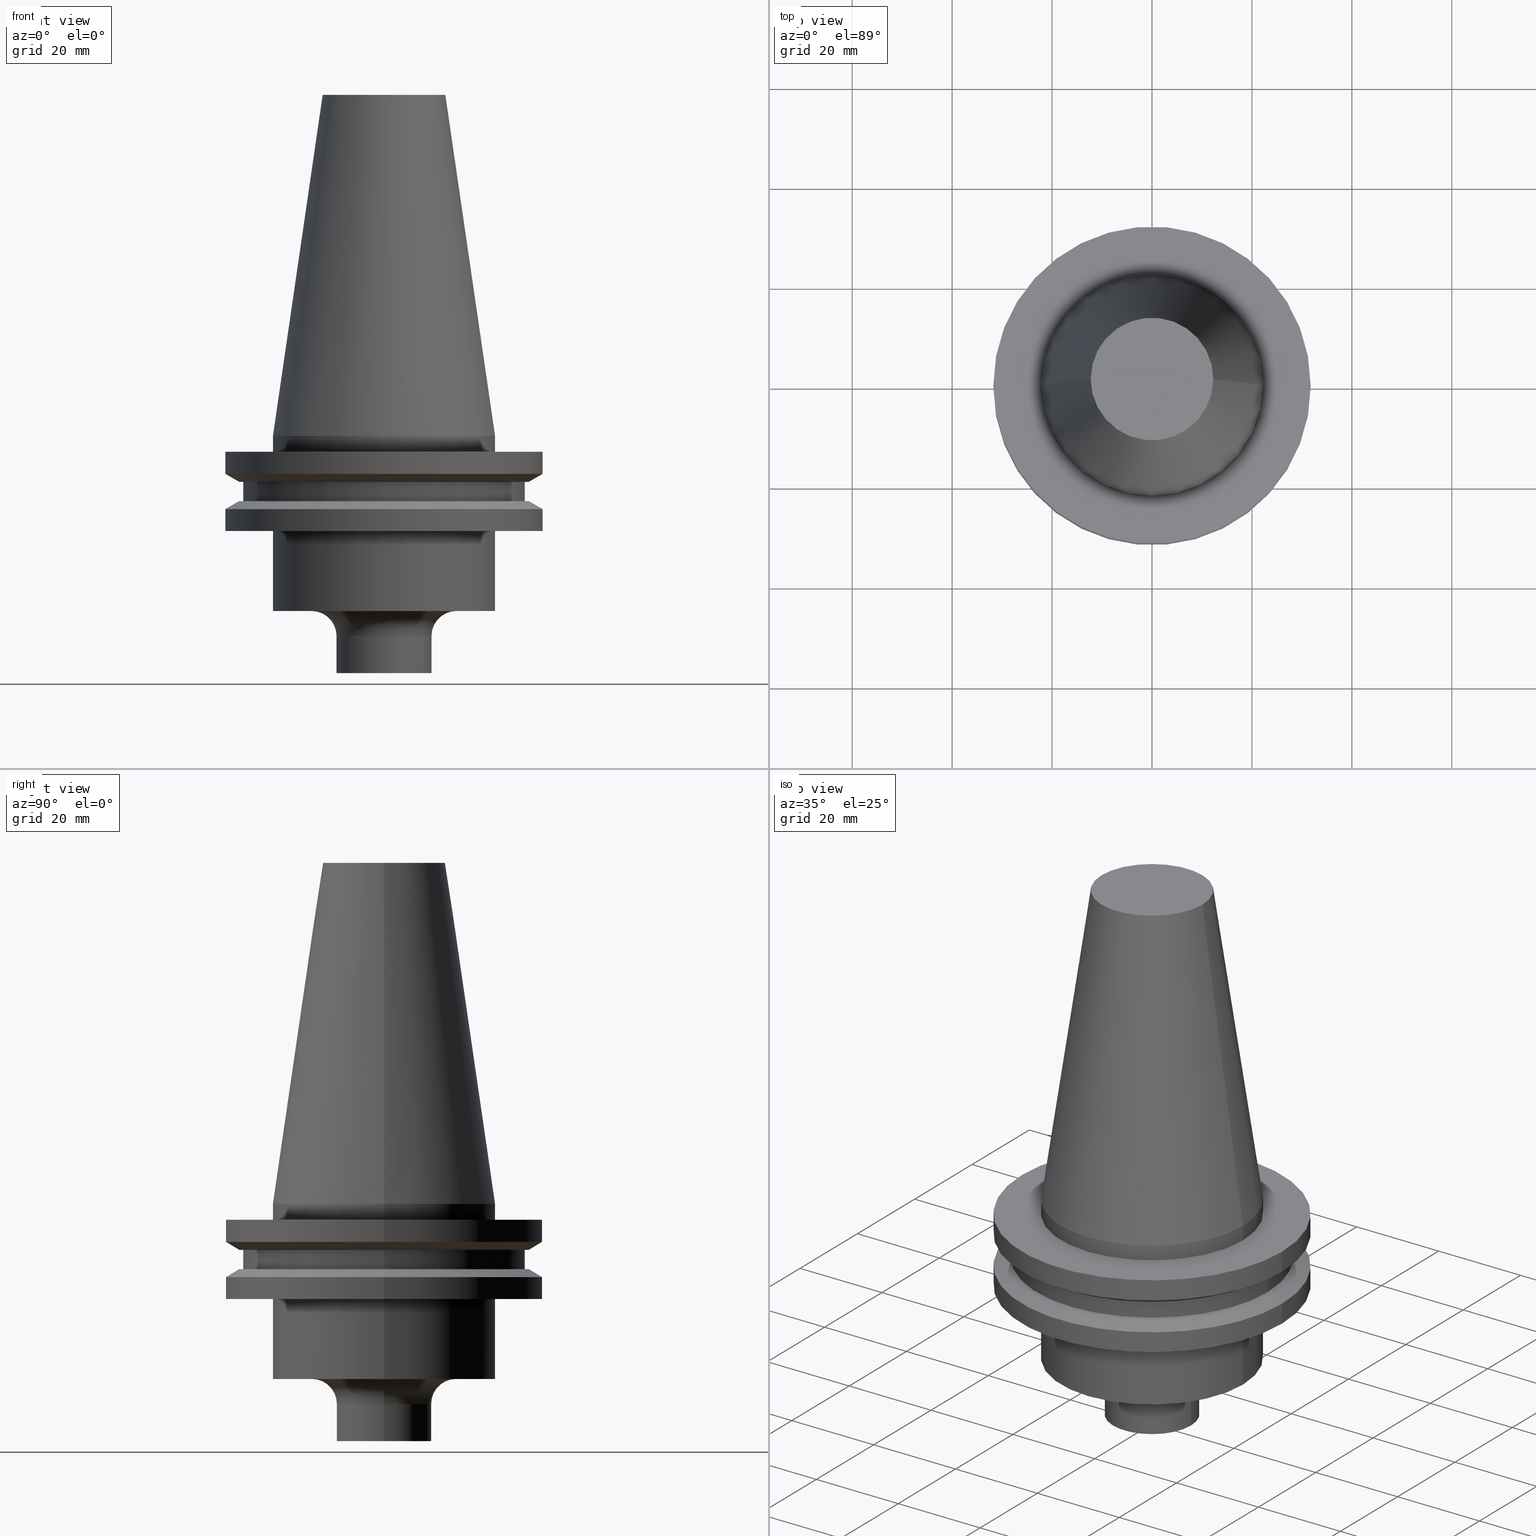
[diagram: canonical four-view strip — front | top / right | iso, engineering-drawing reading convention]
A machine part, canonical four-view strip (front | top / right | iso — engineering-drawing reading convention). The complete STEP part file that produces these views, byte-faithful:
ISO-10303-21;
HEADER;
FILE_DESCRIPTION (( 'STEP AP203' ),
    '1' );
FILE_NAME ('11_326_410.stp',
    '2022-03-07T22:02:13',
    ( '' ),
    ( '' ),
    'SwSTEP 2.0',
    'SolidWorks 2021',
    '' );
FILE_SCHEMA (( 'CONFIG_CONTROL_DESIGN' ));
ENDSEC;

DATA;
#1 = VERTEX_POINT ( 'NONE', #56 ) ;
#2 = APPROVAL_ROLE ( '' ) ;
#3 = ADVANCED_FACE ( 'NONE', ( #408 ), #601, .T. ) ;
#4 = LINE ( 'NONE', #603, #214 ) ;
#5 = ORIENTED_EDGE ( 'NONE', *, *, #110, .T. ) ;
#6 = AXIS2_PLACEMENT_3D ( 'NONE', #674, #201, #374 ) ;
#7 = CARTESIAN_POINT ( 'NONE',  ( 31.75000000000000000, 0.000000000000000000, -7.605276606597335842 ) ) ;
#8 = CALENDAR_DATE ( 2022, 7, 3 ) ;
#9 = ORIENTED_EDGE ( 'NONE', *, *, #564, .F. ) ;
#10 = EDGE_CURVE ( 'NONE', #628, #239, #735, .T. ) ;
#11 = CC_DESIGN_APPROVAL ( #255, ( #557 ) ) ;
#12 = PERSON_AND_ORGANIZATION ( #497, #494 ) ;
#13 = ORIENTED_EDGE ( 'NONE', *, *, #118, .T. ) ;
#14 = DIRECTION ( 'NONE',  ( 0.000000000000000000, 0.000000000000000000, -1.000000000000000000 ) ) ;
#15 = DATE_TIME_ROLE ( 'creation_date' ) ;
#16 = VECTOR ( 'NONE', #274, 999.9999999999998863 ) ;
#17 = CARTESIAN_POINT ( 'NONE',  ( -31.75000000000000000, 3.888253587292846476E-15, -7.605276606597335842 ) ) ;
#18 = EDGE_CURVE ( 'NONE', #587, #103, #124, .T. ) ;
#19 = DIRECTION ( 'NONE',  ( 1.000000000000000000, 0.000000000000000000, 0.000000000000000000 ) ) ;
#20 = AXIS2_PLACEMENT_3D ( 'NONE', #275, #287, #775 ) ;
#21 = CARTESIAN_POINT ( 'NONE',  ( -22.22500000000000142, 2.721777511104992849E-15, -35.04999999999999716 ) ) ;
#22 = CYLINDRICAL_SURFACE ( 'NONE', #695, 22.22500000000000142 ) ;
#23 = DIRECTION ( 'NONE',  ( -0.000000000000000000, -0.000000000000000000, 1.000000000000000000 ) ) ;
#24 = VECTOR ( 'NONE', #142, 1000.000000000000000 ) ;
#25 = CARTESIAN_POINT ( 'NONE',  ( 28.97919780457007732, 0.000000000000000000, -9.205000000000005400 ) ) ;
#26 = AXIS2_PLACEMENT_3D ( 'NONE', #444, #563, #27 ) ;
#27 = DIRECTION ( 'NONE',  ( 1.000000000000000000, 0.000000000000000000, 0.000000000000000000 ) ) ;
#28 = CARTESIAN_POINT ( 'NONE',  ( 0.000000000000000000, 0.000000000000000000, -3.174999999999997158 ) ) ;
#29 = CARTESIAN_POINT ( 'NONE',  ( 0.000000000000000000, 0.000000000000000000, 68.25000000000000000 ) ) ;
#30 = EDGE_CURVE ( 'NONE', #103, #587, #297, .T. ) ;
#31 = ORIENTED_EDGE ( 'NONE', *, *, #192, .F. ) ;
#32 = ORIENTED_EDGE ( 'NONE', *, *, #525, .T. ) ;
#33 = DIRECTION ( 'NONE',  ( 1.000000000000000000, 0.000000000000000000, 0.000000000000000000 ) ) ;
#34 = LINE ( 'NONE', #572, #765 ) ;
#35 = FACE_OUTER_BOUND ( 'NONE', #150, .T. ) ;
#36 = DIRECTION ( 'NONE',  ( 1.000000000000000000, 0.000000000000000000, 0.000000000000000000 ) ) ;
#37 = VECTOR ( 'NONE', #505, 1000.000000000000000 ) ;
#38 = EDGE_LOOP ( 'NONE', ( #770, #529, #149, #221 ) ) ;
#39 = CC_DESIGN_PERSON_AND_ORGANIZATION_ASSIGNMENT ( #12, #300, ( #557 ) ) ;
#40 = EDGE_LOOP ( 'NONE', ( #410, #323, #509, #571 ) ) ;
#41 = DIRECTION ( 'NONE',  ( -1.000000000000000000, 0.000000000000000000, 0.000000000000000000 ) ) ;
#42 = DIRECTION ( 'NONE',  ( -0.000000000000000000, -0.000000000000000000, 1.000000000000000000 ) ) ;
#43 = CARTESIAN_POINT ( 'NONE',  ( 0.000000000000000000, 0.000000000000000000, -40.04999999999999716 ) ) ;
#44 = DIRECTION ( 'NONE',  ( -0.000000000000000000, -0.000000000000000000, 1.000000000000000000 ) ) ;
#45 = ORIENTED_EDGE ( 'NONE', *, *, #568, .F. ) ;
#46 = ORIENTED_EDGE ( 'NONE', *, *, #731, .T. ) ;
#47 = PLANE ( 'NONE',  #492 ) ;
#48 = DIRECTION ( 'NONE',  ( 1.000000000000000000, 0.000000000000000000, 0.000000000000000000 ) ) ;
#49 = CARTESIAN_POINT ( 'NONE',  ( 0.000000000000000000, 0.000000000000000000, -7.605276606597335842 ) ) ;
#50 = VERTEX_POINT ( 'NONE', #692 ) ;
#51 = CIRCLE ( 'NONE', #653, 28.97919780457008088 ) ;
#52 = VECTOR ( 'NONE', #445, 999.9999999999998863 ) ;
#53 = EDGE_LOOP ( 'NONE', ( #95, #484 ) ) ;
#54 = EDGE_CURVE ( 'NONE', #164, #257, #654, .T. ) ;
#55 = DIRECTION ( 'NONE',  ( 1.000000000000000000, 0.000000000000000000, 0.000000000000000000 ) ) ;
#56 = CARTESIAN_POINT ( 'NONE',  ( -28.97919780457008088, 0.000000000000000000, -13.05499999999999794 ) ) ;
#57 = CONICAL_SURFACE ( 'NONE', #489, 22.22500000000000142, 0.1448138465474119174 ) ;
#58 = DIRECTION ( 'NONE',  ( -0.000000000000000000, -0.000000000000000000, 1.000000000000000000 ) ) ;
#59 = VERTEX_POINT ( 'NONE', #586 ) ;
#60 = PERSON_AND_ORGANIZATION ( #497, #494 ) ;
#61 = EDGE_CURVE ( 'NONE', #211, #605, #376, .T. ) ;
#62 = CIRCLE ( 'NONE', #763, 14.49999999999999822 ) ;
#63 = AXIS2_PLACEMENT_3D ( 'NONE', #585, #335, #753 ) ;
#64 = EDGE_LOOP ( 'NONE', ( #512, #381 ) ) ;
#65 = APPROVAL_DATE_TIME ( #600, #368 ) ;
#66 = CARTESIAN_POINT ( 'NONE',  ( -28.17999999999999972, 3.451054679997241634E-15, -9.204999999999991189 ) ) ;
#67 = CIRCLE ( 'NONE', #102, 31.74999999999999289 ) ;
#68 = APPROVAL_STATUS ( 'not_yet_approved' ) ;
#69 = CARTESIAN_POINT ( 'NONE',  ( 31.74999999999999289, 0.000000000000000000, -19.04999999999999716 ) ) ;
#70 = DATE_AND_TIME ( #8, #72 ) ;
#71 = EDGE_LOOP ( 'NONE', ( #667, #282 ) ) ;
#72 = LOCAL_TIME ( 16, 2, 13.00000000000000000, #307 ) ;
#73 = CYLINDRICAL_SURFACE ( 'NONE', #386, 31.75000000000000000 ) ;
#74 = DIRECTION ( 'NONE',  ( 0.000000000000000000, 0.000000000000000000, 1.000000000000000000 ) ) ;
#75 = AXIS2_PLACEMENT_3D ( 'NONE', #613, #311, #19 ) ;
#76 = EDGE_CURVE ( 'NONE', #448, #1, #559, .T. ) ;
#77 = VERTEX_POINT ( 'NONE', #171 ) ;
#78 = AXIS2_PLACEMENT_3D ( 'NONE', #155, #392, #637 ) ;
#79 = DIRECTION ( 'NONE',  ( 0.8660254037844389297, 0.000000000000000000, 0.4999999999999995004 ) ) ;
#80 = EDGE_CURVE ( 'NONE', #574, #581, #116, .T. ) ;
#81 = CIRCLE ( 'NONE', #417, 12.27178102086201150 ) ;
#82 = CARTESIAN_POINT ( 'NONE',  ( 0.000000000000000000, 0.000000000000000000, 0.000000000000000000 ) ) ;
#83 = DIRECTION ( 'NONE',  ( 1.000000000000000000, 0.000000000000000000, 0.000000000000000000 ) ) ;
#84 = CARTESIAN_POINT ( 'NONE',  ( 0.000000000000000000, 0.000000000000000000, -40.04999999999999716 ) ) ;
#85 = DIRECTION ( 'NONE',  ( 1.000000000000000000, 0.000000000000000000, 0.000000000000000000 ) ) ;
#86 = DIRECTION ( 'NONE',  ( 1.000000000000000000, 0.000000000000000000, 0.000000000000000000 ) ) ;
#87 = DIRECTION ( 'NONE',  ( 1.000000000000000000, 0.000000000000000000, 0.000000000000000000 ) ) ;
#88 = DIRECTION ( 'NONE',  ( -0.000000000000000000, -0.000000000000000000, 1.000000000000000000 ) ) ;
#89 = ORIENTED_EDGE ( 'NONE', *, *, #18, .F. ) ;
#90 = ORIENTED_EDGE ( 'NONE', *, *, #76, .F. ) ;
#91 = CIRCLE ( 'NONE', #473, 9.499999999999998224 ) ;
#92 =( LENGTH_UNIT ( ) NAMED_UNIT ( * ) SI_UNIT ( .MILLI., .METRE. ) );
#93 = FACE_BOUND ( 'NONE', #64, .T. ) ;
#94 = DIRECTION ( 'NONE',  ( 1.000000000000000000, 0.000000000000000000, 0.000000000000000000 ) ) ;
#95 = ORIENTED_EDGE ( 'NONE', *, *, #246, .F. ) ;
#96 = EDGE_LOOP ( 'NONE', ( #385, #744, #400, #126 ) ) ;
#97 = DIRECTION ( 'NONE',  ( 1.000000000000000000, 0.000000000000000000, 0.000000000000000000 ) ) ;
#98 = DIRECTION ( 'NONE',  ( -0.000000000000000000, -0.000000000000000000, 1.000000000000000000 ) ) ;
#99 = LINE ( 'NONE', #336, #567 ) ;
#100 = FACE_OUTER_BOUND ( 'NONE', #114, .T. ) ;
#101 = ORIENTED_EDGE ( 'NONE', *, *, #246, .T. ) ;
#102 = AXIS2_PLACEMENT_3D ( 'NONE', #190, #443, #745 ) ;
#103 = VERTEX_POINT ( 'NONE', #288 ) ;
#104 = ORIENTED_EDGE ( 'NONE', *, *, #525, .F. ) ;
#105 = CARTESIAN_POINT ( 'NONE',  ( -31.75000000000000000, 0.000000000000000000, -14.65472339340266572 ) ) ;
#106 = DIRECTION ( 'NONE',  ( -0.000000000000000000, -0.000000000000000000, 1.000000000000000000 ) ) ;
#107 = APPLICATION_CONTEXT ( 'configuration controlled 3d designs of mechanical parts and assemblies' ) ;
#108 = ORIENTED_EDGE ( 'NONE', *, *, #356, .T. ) ;
#109 = ORIENTED_EDGE ( 'NONE', *, *, #18, .T. ) ;
#110 = EDGE_CURVE ( 'NONE', #448, #581, #268, .T. ) ;
#111 = VERTEX_POINT ( 'NONE', #516 ) ;
#112 = DIRECTION ( 'NONE',  ( -1.000000000000000000, 1.224646799147353454E-16, 0.000000000000000000 ) ) ;
#113 = AXIS2_PLACEMENT_3D ( 'NONE', #241, #14, #606 ) ;
#114 = EDGE_LOOP ( 'NONE', ( #487, #764, #302, #31 ) ) ;
#115 = VECTOR ( 'NONE', #689, 1000.000000000000000 ) ;
#116 = LINE ( 'NONE', #210, #703 ) ;
#117 = ORIENTED_EDGE ( 'NONE', *, *, #253, .F. ) ;
#118 = EDGE_CURVE ( 'NONE', #655, #633, #542, .T. ) ;
#119 = EDGE_LOOP ( 'NONE', ( #708, #108 ) ) ;
#120 = MECHANICAL_CONTEXT ( 'NONE', #619, 'mechanical' ) ;
#121 = ADVANCED_FACE ( 'NONE', ( #453 ), #264, .T. ) ;
#122 = DIRECTION ( 'NONE',  ( -0.000000000000000000, -0.000000000000000000, 1.000000000000000000 ) ) ;
#123 = FACE_OUTER_BOUND ( 'NONE', #158, .T. ) ;
#124 = CIRCLE ( 'NONE', #465, 9.499999999999998224 ) ;
#125 = CALENDAR_DATE ( 2022, 7, 3 ) ;
#126 = ORIENTED_EDGE ( 'NONE', *, *, #356, .F. ) ;
#127 = ADVANCED_FACE ( 'NONE', ( #100 ), #337, .T. ) ;
#128 = CARTESIAN_POINT ( 'NONE',  ( 0.000000000000000000, 0.000000000000000000, 0.000000000000000000 ) ) ;
#129 = APPROVAL_STATUS ( 'not_yet_approved' ) ;
#130 = VERTEX_POINT ( 'NONE', #462 ) ;
#131 = AXIS2_PLACEMENT_3D ( 'NONE', #204, #88, #329 ) ;
#132 = VECTOR ( 'NONE', #577, 1000.000000000000000 ) ;
#133 = LINE ( 'NONE', #681, #37 ) ;
#134 = EDGE_CURVE ( 'NONE', #290, #610, #316, .T. ) ;
#135 = CARTESIAN_POINT ( 'NONE',  ( -31.75000000000000000, 3.888253587292846476E-15, -14.65472339340266572 ) ) ;
#136 = EDGE_CURVE ( 'NONE', #164, #574, #67, .T. ) ;
#137 = AXIS2_PLACEMENT_3D ( 'NONE', #615, #250, #138 ) ;
#138 = DIRECTION ( 'NONE',  ( 1.000000000000000000, 0.000000000000000000, 0.000000000000000000 ) ) ;
#139 = DIRECTION ( 'NONE',  ( 1.000000000000000000, 0.000000000000000000, 0.000000000000000000 ) ) ;
#140 = DIRECTION ( 'NONE',  ( -0.000000000000000000, -0.000000000000000000, 1.000000000000000000 ) ) ;
#141 = FACE_OUTER_BOUND ( 'NONE', #766, .T. ) ;
#142 = DIRECTION ( 'NONE',  ( -0.000000000000000000, -0.000000000000000000, 1.000000000000000000 ) ) ;
#143 = ORIENTED_EDGE ( 'NONE', *, *, #475, .F. ) ;
#144 = ADVANCED_FACE ( 'NONE', ( #554 ), #435, .T. ) ;
#145 = DIRECTION ( 'NONE',  ( 1.000000000000000000, 0.000000000000000000, 0.000000000000000000 ) ) ;
#146 = DIRECTION ( 'NONE',  ( 1.000000000000000000, 0.000000000000000000, 0.000000000000000000 ) ) ;
#147 = CARTESIAN_POINT ( 'NONE',  ( -22.22500000000000142, 2.721777511104992849E-15, -3.174999999999997158 ) ) ;
#148 = DIRECTION ( 'NONE',  ( 1.000000000000000000, 0.000000000000000000, 0.000000000000000000 ) ) ;
#149 = ORIENTED_EDGE ( 'NONE', *, *, #80, .T. ) ;
#150 = EDGE_LOOP ( 'NONE', ( #174, #583 ) ) ;
#151 = APPROVAL_PERSON_ORGANIZATION ( #413, #255, #2 ) ;
#152 = CARTESIAN_POINT ( 'NONE',  ( -14.49999999999999822, 1.775737858763662015E-15, -40.04999999999999716 ) ) ;
#153 = FACE_OUTER_BOUND ( 'NONE', #663, .T. ) ;
#154 = CARTESIAN_POINT ( 'NONE',  ( 0.000000000000000000, 0.000000000000000000, 68.25000000000000000 ) ) ;
#155 = CARTESIAN_POINT ( 'NONE',  ( 0.000000000000000000, 0.000000000000000000, -14.65472339340266572 ) ) ;
#156 = EDGE_LOOP ( 'NONE', ( #697, #212 ) ) ;
#157 = VERTEX_POINT ( 'NONE', #431 ) ;
#158 = EDGE_LOOP ( 'NONE', ( #401, #521, #524, #632 ) ) ;
#159 = DIRECTION ( 'NONE',  ( 1.000000000000000000, 0.000000000000000000, 0.000000000000000000 ) ) ;
#160 = CARTESIAN_POINT ( 'NONE',  ( 0.000000000000000000, 0.000000000000000000, -40.04999999999999716 ) ) ;
#161 = CARTESIAN_POINT ( 'NONE',  ( 0.000000000000000000, 31.74999999999999289, -19.04999999999999716 ) ) ;
#162 = DIRECTION ( 'NONE',  ( -0.000000000000000000, -0.000000000000000000, 1.000000000000000000 ) ) ;
#163 = EDGE_CURVE ( 'NONE', #50, #628, #671, .T. ) ;
#164 = VERTEX_POINT ( 'NONE', #677 ) ;
#165 = AXIS2_PLACEMENT_3D ( 'NONE', #769, #44, #646 ) ;
#166 = ORIENTED_EDGE ( 'NONE', *, *, #475, .T. ) ;
#167 = CARTESIAN_POINT ( 'NONE',  ( -22.22500000000000142, 0.000000000000000000, 0.000000000000000000 ) ) ;
#168 = DIRECTION ( 'NONE',  ( 1.000000000000000000, 0.000000000000000000, 0.000000000000000000 ) ) ;
#169 = CARTESIAN_POINT ( 'NONE',  ( 31.75000000000000000, 3.888253587292846476E-15, -14.65472339340266572 ) ) ;
#170 = CIRCLE ( 'NONE', #608, 31.75000000000000000 ) ;
#171 = CARTESIAN_POINT ( 'NONE',  ( -12.27178102086201150, 0.000000000000000000, 68.25000000000000000 ) ) ;
#172 = ADVANCED_FACE ( 'NONE', ( #371 ), #57, .T. ) ;
#173 = VERTEX_POINT ( 'NONE', #21 ) ;
#174 = ORIENTED_EDGE ( 'NONE', *, *, #176, .F. ) ;
#175 = CALENDAR_DATE ( 2022, 7, 3 ) ;
#176 = EDGE_CURVE ( 'NONE', #574, #164, #369, .T. ) ;
#177 = DIRECTION ( 'NONE',  ( 1.000000000000000000, 0.000000000000000000, 0.000000000000000000 ) ) ;
#178 = CARTESIAN_POINT ( 'NONE',  ( 0.000000000000000000, 0.000000000000000000, 0.000000000000000000 ) ) ;
#179 = AXIS2_PLACEMENT_3D ( 'NONE', #506, #259, #450 ) ;
#180 = CARTESIAN_POINT ( 'NONE',  ( 31.75000000000000000, 0.000000000000000000, -14.65472339340266572 ) ) ;
#181 = EDGE_LOOP ( 'NONE', ( #576, #234 ) ) ;
#182 = EDGE_CURVE ( 'NONE', #103, #157, #133, .T. ) ;
#183 = DIRECTION ( 'NONE',  ( 0.000000000000000000, -0.000000000000000000, 1.000000000000000000 ) ) ;
#184 = AXIS2_PLACEMENT_3D ( 'NONE', #580, #224, #218 ) ;
#185 = ORIENTED_EDGE ( 'NONE', *, *, #434, .T. ) ;
#186 = CARTESIAN_POINT ( 'NONE',  ( 22.22500000000000142, 0.000000000000000000, 68.25000000000000000 ) ) ;
#187 = COORDINATED_UNIVERSAL_TIME_OFFSET ( 6, 0, .BEHIND. ) ;
#188 = AXIS2_PLACEMENT_3D ( 'NONE', #29, #261, #148 ) ;
#189 = EDGE_CURVE ( 'NONE', #530, #270, #575, .T. ) ;
#190 = CARTESIAN_POINT ( 'NONE',  ( 0.000000000000000000, 0.000000000000000000, -19.04999999999999716 ) ) ;
#191 = DIRECTION ( 'NONE',  ( 1.000000000000000000, 0.000000000000000000, 0.000000000000000000 ) ) ;
#192 = EDGE_CURVE ( 'NONE', #59, #111, #432, .T. ) ;
#193 = CARTESIAN_POINT ( 'NONE',  ( 14.49999999999999822, 0.000000000000000000, -40.04999999999999716 ) ) ;
#194 = AXIS2_PLACEMENT_3D ( 'NONE', #446, #754, #139 ) ;
#195 = LOCAL_TIME ( 16, 2, 13.00000000000000000, #187 ) ;
#196 = CARTESIAN_POINT ( 'NONE',  ( 0.000000000000000000, 0.000000000000000000, -13.05499999999999794 ) ) ;
#197 = CARTESIAN_POINT ( 'NONE',  ( 0.000000000000000000, 0.000000000000000000, -14.65472339340266572 ) ) ;
#198 = CARTESIAN_POINT ( 'NONE',  ( 0.000000000000000000, 0.000000000000000000, 68.25000000000000000 ) ) ;
#199 = EDGE_CURVE ( 'NONE', #111, #59, #409, .T. ) ;
#200 = ORIENTED_EDGE ( 'NONE', *, *, #238, .T. ) ;
#201 = DIRECTION ( 'NONE',  ( -0.000000000000000000, -0.000000000000000000, 1.000000000000000000 ) ) ;
#202 = DIRECTION ( 'NONE',  ( 1.224646799147353207E-16, 1.000000000000000000, 0.000000000000000000 ) ) ;
#203 = DIRECTION ( 'NONE',  ( 1.000000000000000000, 0.000000000000000000, 0.000000000000000000 ) ) ;
#204 = CARTESIAN_POINT ( 'NONE',  ( 0.000000000000000000, 0.000000000000000000, 68.25000000000000000 ) ) ;
#205 = ORIENTED_EDGE ( 'NONE', *, *, #289, .F. ) ;
#206 = ORIENTED_EDGE ( 'NONE', *, *, #510, .F. ) ;
#207 = FACE_BOUND ( 'NONE', #388, .T. ) ;
#208 = CARTESIAN_POINT ( 'NONE',  ( 0.000000000000000000, 0.000000000000000000, -9.205000000000005400 ) ) ;
#209 = CYLINDRICAL_SURFACE ( 'NONE', #188, 28.17999999999999972 ) ;
#210 = CARTESIAN_POINT ( 'NONE',  ( 31.75000000000000000, 0.000000000000000000, 68.25000000000000000 ) ) ;
#211 = VERTEX_POINT ( 'NONE', #258 ) ;
#212 = ORIENTED_EDGE ( 'NONE', *, *, #499, .F. ) ;
#213 = EDGE_CURVE ( 'NONE', #270, #530, #240, .T. ) ;
#214 = VECTOR ( 'NONE', #233, 1000.000000000000000 ) ;
#215 = DIRECTION ( 'NONE',  ( -0.000000000000000000, -0.000000000000000000, 1.000000000000000000 ) ) ;
#216 = CARTESIAN_POINT ( 'NONE',  ( 0.000000000000000000, 0.000000000000000000, -19.04999999999999716 ) ) ;
#217 = PLANE ( 'NONE',  #595 ) ;
#218 = DIRECTION ( 'NONE',  ( 1.000000000000000000, 0.000000000000000000, 0.000000000000000000 ) ) ;
#219 = VERTEX_POINT ( 'NONE', #317 ) ;
#220 = CIRCLE ( 'NONE', #723, 28.17999999999999972 ) ;
#221 = ORIENTED_EDGE ( 'NONE', *, *, #712, .F. ) ;
#222 = FACE_OUTER_BOUND ( 'NONE', #704, .T. ) ;
#223 = DIRECTION ( 'NONE',  ( 1.000000000000000000, 0.000000000000000000, 0.000000000000000000 ) ) ;
#224 = DIRECTION ( 'NONE',  ( -0.000000000000000000, -0.000000000000000000, 1.000000000000000000 ) ) ;
#225 = PRODUCT_RELATED_PRODUCT_CATEGORY ( 'detail', '', ( #285 ) ) ;
#226 = ORIENTED_EDGE ( 'NONE', *, *, #238, .F. ) ;
#227 = EDGE_LOOP ( 'NONE', ( #687, #205 ) ) ;
#228 = DIRECTION ( 'NONE',  ( 0.000000000000000000, -1.000000000000000000, 0.000000000000000000 ) ) ;
#229 = AXIS2_PLACEMENT_3D ( 'NONE', #425, #122, #55 ) ;
#230 = ORIENTED_EDGE ( 'NONE', *, *, #182, .T. ) ;
#231 = COORDINATED_UNIVERSAL_TIME_OFFSET ( 6, 0, .BEHIND. ) ;
#232 = AXIS2_PLACEMENT_3D ( 'NONE', #196, #140, #251 ) ;
#233 = DIRECTION ( 'NONE',  ( -0.000000000000000000, -0.000000000000000000, 1.000000000000000000 ) ) ;
#234 = ORIENTED_EDGE ( 'NONE', *, *, #269, .T. ) ;
#235 = APPLICATION_PROTOCOL_DEFINITION ( 'international standard', 'config_control_design', 1994, #619 ) ;
#236 = CYLINDRICAL_SURFACE ( 'NONE', #710, 31.75000000000000000 ) ;
#237 = COORDINATED_UNIVERSAL_TIME_OFFSET ( 6, 0, .BEHIND. ) ;
#238 = EDGE_CURVE ( 'NONE', #1, #448, #51, .T. ) ;
#239 = VERTEX_POINT ( 'NONE', #17 ) ;
#240 = CIRCLE ( 'NONE', #75, 28.17999999999999972 ) ;
#241 = CARTESIAN_POINT ( 'NONE',  ( 0.000000000000000000, 31.75000000000000000, -3.174999999999993605 ) ) ;
#242 = APPROVAL_ROLE ( '' ) ;
#243 = VERTEX_POINT ( 'NONE', #249 ) ;
#244 = PLANE ( 'NONE',  #303 ) ;
#245 = PERSON_AND_ORGANIZATION_ROLE ( 'classification_officer' ) ;
#246 = EDGE_CURVE ( 'NONE', #50, #545, #437, .T. ) ;
#247 = LOCAL_TIME ( 16, 2, 13.00000000000000000, #231 ) ;
#248 = AXIS2_PLACEMENT_3D ( 'NONE', #208, #451, #260 ) ;
#249 = CARTESIAN_POINT ( 'NONE',  ( 22.22500000000000142, 0.000000000000000000, -3.174999999999997158 ) ) ;
#250 = DIRECTION ( 'NONE',  ( -0.000000000000000000, -0.000000000000000000, 1.000000000000000000 ) ) ;
#251 = DIRECTION ( 'NONE',  ( 1.000000000000000000, 0.000000000000000000, 0.000000000000000000 ) ) ;
#252 = DIRECTION ( 'NONE',  ( -0.000000000000000000, -0.000000000000000000, 1.000000000000000000 ) ) ;
#253 = EDGE_CURVE ( 'NONE', #545, #239, #624, .T. ) ;
#254 = DIRECTION ( 'NONE',  ( 1.000000000000000000, 0.000000000000000000, 0.000000000000000000 ) ) ;
#255 = APPROVAL ( #68, 'UNSPECIFIED' ) ;
#256 = CONICAL_SURFACE ( 'NONE', #609, 28.97919780457007732, 1.047197551196598297 ) ;
#257 = VERTEX_POINT ( 'NONE', #135 ) ;
#258 = CARTESIAN_POINT ( 'NONE',  ( 28.17999999999999972, 0.000000000000000000, -9.204999999999991189 ) ) ;
#259 = DIRECTION ( 'NONE',  ( -0.000000000000000000, -0.000000000000000000, 1.000000000000000000 ) ) ;
#260 = DIRECTION ( 'NONE',  ( 1.000000000000000000, 0.000000000000000000, 0.000000000000000000 ) ) ;
#261 = DIRECTION ( 'NONE',  ( -0.000000000000000000, -0.000000000000000000, 1.000000000000000000 ) ) ;
#262 = EDGE_LOOP ( 'NONE', ( #365, #412, #143, #308 ) ) ;
#263 = ORIENTED_EDGE ( 'NONE', *, *, #434, .F. ) ;
#264 = CONICAL_SURFACE ( 'NONE', #78, 31.75000000000000000, 1.047197551196597853 ) ;
#265 =( NAMED_UNIT ( * ) SI_UNIT ( $, .STERADIAN. ) SOLID_ANGLE_UNIT ( ) );
#266 = DIRECTION ( 'NONE',  ( -0.000000000000000000, -0.000000000000000000, 1.000000000000000000 ) ) ;
#267 = CARTESIAN_POINT ( 'NONE',  ( 0.000000000000000000, 0.000000000000000000, -3.174999999999997158 ) ) ;
#268 = LINE ( 'NONE', #169, #411 ) ;
#269 = EDGE_CURVE ( 'NONE', #345, #219, #503, .T. ) ;
#270 = VERTEX_POINT ( 'NONE', #498 ) ;
#271 = ORIENTED_EDGE ( 'NONE', *, *, #163, .F. ) ;
#272 = DIRECTION ( 'NONE',  ( -0.000000000000000000, -0.000000000000000000, 1.000000000000000000 ) ) ;
#273 = DIRECTION ( 'NONE',  ( -0.000000000000000000, -0.000000000000000000, 1.000000000000000000 ) ) ;
#274 = DIRECTION ( 'NONE',  ( 0.1443082272672999711, 1.767266086135276757E-17, -0.9895327864921755756 ) ) ;
#275 = CARTESIAN_POINT ( 'NONE',  ( 0.000000000000000000, 0.000000000000000000, -47.50000000000000000 ) ) ;
#276 = ORIENTED_EDGE ( 'NONE', *, *, #372, .F. ) ;
#277 = EDGE_LOOP ( 'NONE', ( #714, #89 ) ) ;
#278 = EDGE_CURVE ( 'NONE', #290, #157, #721, .T. ) ;
#279 = DIRECTION ( 'NONE',  ( -0.000000000000000000, -0.000000000000000000, 1.000000000000000000 ) ) ;
#280 = CARTESIAN_POINT ( 'NONE',  ( 0.000000000000000000, 0.000000000000000000, -7.605276606597335842 ) ) ;
#281 = CARTESIAN_POINT ( 'NONE',  ( 0.000000000000000000, 0.000000000000000000, -13.05499999999999794 ) ) ;
#282 = ORIENTED_EDGE ( 'NONE', *, *, #688, .T. ) ;
#283 = CIRCLE ( 'NONE', #459, 22.22500000000000142 ) ;
#284 = ORIENTED_EDGE ( 'NONE', *, *, #568, .T. ) ;
#285 = PRODUCT ( '11_326_410', '11_326_410', '', ( #120 ) ) ;
#286 = CARTESIAN_POINT ( 'NONE',  ( 22.22500000000000142, 0.000000000000000000, 68.25000000000000000 ) ) ;
#287 = DIRECTION ( 'NONE',  ( -0.000000000000000000, -0.000000000000000000, 1.000000000000000000 ) ) ;
#288 = CARTESIAN_POINT ( 'NONE',  ( 9.499999999999998224, 0.000000000000000000, -47.50000000000000000 ) ) ;
#289 = EDGE_CURVE ( 'NONE', #173, #130, #456, .T. ) ;
#290 = VERTEX_POINT ( 'NONE', #460 ) ;
#291 = DATE_AND_TIME ( #604, #247 ) ;
#292 = VECTOR ( 'NONE', #625, 1000.000000000000000 ) ;
#293 = AXIS2_PLACEMENT_3D ( 'NONE', #699, #106, #203 ) ;
#294 = PRODUCT_DEFINITION_FORMATION_WITH_SPECIFIED_SOURCE ( 'ANY', '', #285, .NOT_KNOWN. ) ;
#295 = ORIENTED_EDGE ( 'NONE', *, *, #269, .F. ) ;
#296 = APPROVAL_ROLE ( '' ) ;
#297 = CIRCLE ( 'NONE', #20, 9.499999999999998224 ) ;
#298 = EDGE_CURVE ( 'NONE', #239, #628, #556, .T. ) ;
#299 = DIRECTION ( 'NONE',  ( 1.000000000000000000, 0.000000000000000000, 0.000000000000000000 ) ) ;
#300 = PERSON_AND_ORGANIZATION_ROLE ( 'creator' ) ;
#301 = CARTESIAN_POINT ( 'NONE',  ( -9.499999999999998224, 1.163414459189985288E-15, -47.50000000000000000 ) ) ;
#302 = ORIENTED_EDGE ( 'NONE', *, *, #737, .T. ) ;
#303 = AXIS2_PLACEMENT_3D ( 'NONE', #491, #183, #359 ) ;
#304 = APPROVAL_PERSON_ORGANIZATION ( #354, #368, #296 ) ;
#305 = VECTOR ( 'NONE', #673, 1000.000000000000000 ) ;
#306 = DIRECTION ( 'NONE',  ( 1.000000000000000000, 0.000000000000000000, 0.000000000000000000 ) ) ;
#307 = COORDINATED_UNIVERSAL_TIME_OFFSET ( 6, 0, .BEHIND. ) ;
#308 = ORIENTED_EDGE ( 'NONE', *, *, #182, .F. ) ;
#309 = ADVANCED_FACE ( 'NONE', ( #629 ), #768, .T. ) ;
#310 = EDGE_CURVE ( 'NONE', #270, #605, #34, .T. ) ;
#311 = DIRECTION ( 'NONE',  ( -0.000000000000000000, -0.000000000000000000, 1.000000000000000000 ) ) ;
#312 = AXIS2_PLACEMENT_3D ( 'NONE', #626, #636, #630 ) ;
#313 = AXIS2_PLACEMENT_3D ( 'NONE', #160, #565, #328 ) ;
#314 = DIRECTION ( 'NONE',  ( 1.000000000000000000, 0.000000000000000000, 0.000000000000000000 ) ) ;
#315 = ADVANCED_FACE ( 'NONE', ( #514, #683 ), #397, .F. ) ;
#316 = CIRCLE ( 'NONE', #727, 14.49999999999999822 ) ;
#317 = CARTESIAN_POINT ( 'NONE',  ( 22.22500000000000142, 0.000000000000000000, -19.04999999999999716 ) ) ;
#318 = CARTESIAN_POINT ( 'NONE',  ( 28.97919780457008088, 3.718590885307660666E-15, -13.05499999999999794 ) ) ;
#319 = DIRECTION ( 'NONE',  ( -1.000000000000000000, 0.000000000000000000, 0.000000000000000000 ) ) ;
#320 = DIRECTION ( 'NONE',  ( -0.000000000000000000, -0.000000000000000000, 1.000000000000000000 ) ) ;
#321 = DIRECTION ( 'NONE',  ( -0.000000000000000000, -0.000000000000000000, 1.000000000000000000 ) ) ;
#322 = CARTESIAN_POINT ( 'NONE',  ( 12.27178102086201150, 2.112318622904291439E-15, 68.25000000000000000 ) ) ;
#323 = ORIENTED_EDGE ( 'NONE', *, *, #54, .T. ) ;
#324 = AXIS2_PLACEMENT_3D ( 'NONE', #216, #273, #223 ) ;
#325 = AXIS2_PLACEMENT_3D ( 'NONE', #513, #320, #97 ) ;
#326 = ORIENTED_EDGE ( 'NONE', *, *, #510, .T. ) ;
#327 = FACE_OUTER_BOUND ( 'NONE', #338, .T. ) ;
#328 = DIRECTION ( 'NONE',  ( 1.000000000000000000, 0.000000000000000000, 0.000000000000000000 ) ) ;
#329 = DIRECTION ( 'NONE',  ( 1.000000000000000000, 0.000000000000000000, 0.000000000000000000 ) ) ;
#330 = ADVANCED_FACE ( 'NONE', ( #141 ), #493, .F. ) ;
#331 = VERTEX_POINT ( 'NONE', #147 ) ;
#332 = ORIENTED_EDGE ( 'NONE', *, *, #163, .T. ) ;
#333 = VECTOR ( 'NONE', #701, 1000.000000000000000 ) ;
#334 = CARTESIAN_POINT ( 'NONE',  ( 0.000000000000000000, 0.000000000000000000, -14.65472339340266572 ) ) ;
#335 = DIRECTION ( 'NONE',  ( 0.000000000000000000, -0.000000000000000000, 1.000000000000000000 ) ) ;
#336 = CARTESIAN_POINT ( 'NONE',  ( 28.17999999999999972, 0.000000000000000000, 68.25000000000000000 ) ) ;
#337 = CYLINDRICAL_SURFACE ( 'NONE', #184, 31.75000000000000000 ) ;
#338 = EDGE_LOOP ( 'NONE', ( #46, #549, #340, #694 ) ) ;
#339 = EDGE_CURVE ( 'NONE', #545, #50, #419, .T. ) ;
#340 = ORIENTED_EDGE ( 'NONE', *, *, #405, .F. ) ;
#341 = FACE_OUTER_BOUND ( 'NONE', #470, .T. ) ;
#342 = DIRECTION ( 'NONE',  ( 1.000000000000000000, 0.000000000000000000, 0.000000000000000000 ) ) ;
#343 = ORIENTED_EDGE ( 'NONE', *, *, #499, .T. ) ;
#344 = ORIENTED_EDGE ( 'NONE', *, *, #713, .F. ) ;
#345 = VERTEX_POINT ( 'NONE', #690 ) ;
#346 =( GEOMETRIC_REPRESENTATION_CONTEXT ( 3 ) GLOBAL_UNCERTAINTY_ASSIGNED_CONTEXT ( ( #685 ) ) GLOBAL_UNIT_ASSIGNED_CONTEXT ( ( #92, #378, #265 ) ) REPRESENTATION_CONTEXT ( 'NONE', 'WORKASPACE' ) );
#347 = DIRECTION ( 'NONE',  ( 1.000000000000000000, 0.000000000000000000, 0.000000000000000000 ) ) ;
#348 = DIRECTION ( 'NONE',  ( 1.000000000000000000, 0.000000000000000000, 0.000000000000000000 ) ) ;
#349 = ADVANCED_FACE ( 'NONE', ( #93, #153 ), #390, .F. ) ;
#350 = EDGE_CURVE ( 'NONE', #243, #331, #283, .T. ) ;
#351 = CARTESIAN_POINT ( 'NONE',  ( 0.000000000000000000, 0.000000000000000000, 0.000000000000000000 ) ) ;
#352 = EDGE_LOOP ( 'NONE', ( #276, #109, #230, #206 ) ) ;
#353 = ORIENTED_EDGE ( 'NONE', *, *, #614, .F. ) ;
#354 = PERSON_AND_ORGANIZATION ( #497, #494 ) ;
#355 = CIRCLE ( 'NONE', #179, 31.75000000000000000 ) ;
#356 = EDGE_CURVE ( 'NONE', #605, #211, #220, .T. ) ;
#357 = FACE_OUTER_BOUND ( 'NONE', #442, .T. ) ;
#358 = APPLICATION_PROTOCOL_DEFINITION ( 'international standard', 'config_control_design', 1994, #107 ) ;
#359 = DIRECTION ( 'NONE',  ( 1.000000000000000000, 0.000000000000000000, 0.000000000000000000 ) ) ;
#360 = CC_DESIGN_DATE_AND_TIME_ASSIGNMENT ( #544, #361, ( #598 ) ) ;
#361 = DATE_TIME_ROLE ( 'classification_date' ) ;
#362 = EDGE_LOOP ( 'NONE', ( #117, #640, #332, #464 ) ) ;
#363 = DIRECTION ( 'NONE',  ( -0.000000000000000000, -0.000000000000000000, 1.000000000000000000 ) ) ;
#364 = PERSON_AND_ORGANIZATION_ROLE ( 'design_supplier' ) ;
#365 = ORIENTED_EDGE ( 'NONE', *, *, #30, .T. ) ;
#366 = TOROIDAL_SURFACE ( 'NONE', #229, 14.49999999999999822, 4.999999999999999112 ) ;
#367 = CIRCLE ( 'NONE', #325, 22.22500000000000142 ) ;
#368 = APPROVAL ( #483, 'UNSPECIFIED' ) ;
#369 = CIRCLE ( 'NONE', #6, 31.74999999999999289 ) ;
#370 = DIRECTION ( 'NONE',  ( -0.000000000000000000, -0.000000000000000000, 1.000000000000000000 ) ) ;
#371 = FACE_OUTER_BOUND ( 'NONE', #570, .T. ) ;
#372 = EDGE_CURVE ( 'NONE', #587, #639, #527, .T. ) ;
#373 = VECTOR ( 'NONE', #644, 1000.000000000000000 ) ;
#374 = DIRECTION ( 'NONE',  ( 1.000000000000000000, 0.000000000000000000, 0.000000000000000000 ) ) ;
#375 = DIRECTION ( 'NONE',  ( -0.000000000000000000, -0.000000000000000000, 1.000000000000000000 ) ) ;
#376 = CIRCLE ( 'NONE', #641, 28.17999999999999972 ) ;
#377 = DIRECTION ( 'NONE',  ( -0.000000000000000000, -0.000000000000000000, 1.000000000000000000 ) ) ;
#378 =( NAMED_UNIT ( * ) PLANE_ANGLE_UNIT ( ) SI_UNIT ( $, .RADIAN. ) );
#379 = CARTESIAN_POINT ( 'NONE',  ( 0.000000000000000000, 0.000000000000000000, 68.25000000000000000 ) ) ;
#380 = DIRECTION ( 'NONE',  ( 1.000000000000000000, 0.000000000000000000, 0.000000000000000000 ) ) ;
#381 = ORIENTED_EDGE ( 'NONE', *, *, #213, .F. ) ;
#382 = EDGE_CURVE ( 'NONE', #77, #655, #706, .T. ) ;
#383 = DIRECTION ( 'NONE',  ( -0.000000000000000000, -0.000000000000000000, 1.000000000000000000 ) ) ;
#384 = CYLINDRICAL_SURFACE ( 'NONE', #194, 9.499999999999998224 ) ;
#385 = ORIENTED_EDGE ( 'NONE', *, *, #310, .F. ) ;
#386 = AXIS2_PLACEMENT_3D ( 'NONE', #538, #728, #306 ) ;
#387 = AXIS2_PLACEMENT_3D ( 'NONE', #379, #266, #342 ) ;
#388 = EDGE_LOOP ( 'NONE', ( #591, #535 ) ) ;
#389 = LINE ( 'NONE', #105, #115 ) ;
#390 = PLANE ( 'NONE',  #618 ) ;
#391 = DIRECTION ( 'NONE',  ( -0.000000000000000000, -0.000000000000000000, 1.000000000000000000 ) ) ;
#392 = DIRECTION ( 'NONE',  ( 0.000000000000000000, 0.000000000000000000, -1.000000000000000000 ) ) ;
#393 = EDGE_LOOP ( 'NONE', ( #649, #522, #326, #756 ) ) ;
#394 = ORIENTED_EDGE ( 'NONE', *, *, #199, .T. ) ;
#395 = ORIENTED_EDGE ( 'NONE', *, *, #192, .T. ) ;
#396 = DIRECTION ( 'NONE',  ( 1.000000000000000000, 0.000000000000000000, 0.000000000000000000 ) ) ;
#397 = PLANE ( 'NONE',  #63 ) ;
#398 = FACE_BOUND ( 'NONE', #181, .T. ) ;
#399 = CARTESIAN_POINT ( 'NONE',  ( 0.000000000000000000, 0.000000000000000000, -35.04999999999999716 ) ) ;
#400 = ORIENTED_EDGE ( 'NONE', *, *, #469, .T. ) ;
#401 = ORIENTED_EDGE ( 'NONE', *, *, #10, .T. ) ;
#402 = DIRECTION ( 'NONE',  ( 0.000000000000000000, 0.000000000000000000, -1.000000000000000000 ) ) ;
#403 = CARTESIAN_POINT ( 'NONE',  ( -22.22500000000000142, 0.000000000000000000, 0.000000000000000000 ) ) ;
#404 = DIRECTION ( 'NONE',  ( 0.8660254037844387076, 1.060575238724906915E-16, -0.4999999999999998890 ) ) ;
#405 = EDGE_CURVE ( 'NONE', #219, #345, #670, .T. ) ;
#406 = CIRCLE ( 'NONE', #555, 22.22500000000000142 ) ;
#407 = CC_DESIGN_SECURITY_CLASSIFICATION ( #598, ( #294 ) ) ;
#408 = FACE_OUTER_BOUND ( 'NONE', #596, .T. ) ;
#409 = CIRCLE ( 'NONE', #589, 31.75000000000000000 ) ;
#410 = ORIENTED_EDGE ( 'NONE', *, *, #176, .T. ) ;
#411 = VECTOR ( 'NONE', #404, 1000.000000000000000 ) ;
#412 = ORIENTED_EDGE ( 'NONE', *, *, #372, .T. ) ;
#413 = PERSON_AND_ORGANIZATION ( #497, #494 ) ;
#414 = ADVANCED_FACE ( 'NONE', ( #440 ), #678, .F. ) ;
#415 = CARTESIAN_POINT ( 'NONE',  ( -14.49999999999999822, 1.775737858763662015E-15, -35.04999999999999716 ) ) ;
#416 = SHAPE_DEFINITION_REPRESENTATION ( #471, #612 ) ;
#417 = AXIS2_PLACEMENT_3D ( 'NONE', #518, #458, #634 ) ;
#418 = EDGE_CURVE ( 'NONE', #239, #59, #452, .T. ) ;
#419 = CIRCLE ( 'NONE', #248, 28.97919780457007732 ) ;
#420 = FACE_OUTER_BOUND ( 'NONE', #352, .T. ) ;
#421 = ORIENTED_EDGE ( 'NONE', *, *, #278, .T. ) ;
#422 = CYLINDRICAL_SURFACE ( 'NONE', #534, 9.499999999999998224 ) ;
#423 = ORIENTED_EDGE ( 'NONE', *, *, #253, .T. ) ;
#424 = EDGE_CURVE ( 'NONE', #77, #540, #730, .T. ) ;
#425 = CARTESIAN_POINT ( 'NONE',  ( 0.000000000000000000, 0.000000000000000000, -40.04999999999999716 ) ) ;
#426 = APPROVAL_DATE_TIME ( #291, #255 ) ;
#427 = ADVANCED_FACE ( 'NONE', ( #520 ), #691, .T. ) ;
#428 = MANIFOLD_SOLID_BREP ( 'CKB', #664 ) ;
#429 = CIRCLE ( 'NONE', #738, 9.499999999999998224 ) ;
#430 = AXIS2_PLACEMENT_3D ( 'NONE', #650, #272, #347 ) ;
#431 = CARTESIAN_POINT ( 'NONE',  ( 9.499999999999998224, 0.000000000000000000, -40.04999999999999716 ) ) ;
#432 = CIRCLE ( 'NONE', #743, 31.75000000000000000 ) ;
#433 = CARTESIAN_POINT ( 'NONE',  ( -28.97919780457007732, 3.548928183322474856E-15, -9.205000000000005400 ) ) ;
#434 = EDGE_CURVE ( 'NONE', #540, #633, #461, .T. ) ;
#435 = CYLINDRICAL_SURFACE ( 'NONE', #716, 22.22500000000000142 ) ;
#436 = AXIS2_PLACEMENT_3D ( 'NONE', #334, #402, #41 ) ;
#437 = CIRCLE ( 'NONE', #617, 28.97919780457007732 ) ;
#438 = DIRECTION ( 'NONE',  ( -0.000000000000000000, -0.000000000000000000, 1.000000000000000000 ) ) ;
#439 = CYLINDRICAL_SURFACE ( 'NONE', #26, 28.17999999999999972 ) ;
#440 = FACE_OUTER_BOUND ( 'NONE', #71, .T. ) ;
#441 = DIRECTION ( 'NONE',  ( -0.000000000000000000, -0.000000000000000000, 1.000000000000000000 ) ) ;
#442 = EDGE_LOOP ( 'NONE', ( #394, #395 ) ) ;
#443 = DIRECTION ( 'NONE',  ( -0.000000000000000000, -0.000000000000000000, 1.000000000000000000 ) ) ;
#444 = CARTESIAN_POINT ( 'NONE',  ( 0.000000000000000000, 0.000000000000000000, 68.25000000000000000 ) ) ;
#445 = DIRECTION ( 'NONE',  ( -0.1443082272672999711, 0.000000000000000000, -0.9895327864921755756 ) ) ;
#446 = CARTESIAN_POINT ( 'NONE',  ( 0.000000000000000000, 0.000000000000000000, 0.000000000000000000 ) ) ;
#447 = EDGE_LOOP ( 'NONE', ( #90, #5, #709, #344 ) ) ;
#448 = VERTEX_POINT ( 'NONE', #318 ) ;
#449 = CC_DESIGN_PERSON_AND_ORGANIZATION_ASSIGNMENT ( #607, #668, ( #294 ) ) ;
#450 = DIRECTION ( 'NONE',  ( 1.000000000000000000, 0.000000000000000000, 0.000000000000000000 ) ) ;
#451 = DIRECTION ( 'NONE',  ( -0.000000000000000000, -0.000000000000000000, 1.000000000000000000 ) ) ;
#452 = LINE ( 'NONE', #621, #24 ) ;
#453 = FACE_OUTER_BOUND ( 'NONE', #447, .T. ) ;
#454 = ORIENTED_EDGE ( 'NONE', *, *, #424, .F. ) ;
#455 = AXIS2_PLACEMENT_3D ( 'NONE', #267, #375, #561 ) ;
#456 = CIRCLE ( 'NONE', #293, 22.22500000000000142 ) ;
#457 = ORIENTED_EDGE ( 'NONE', *, *, #289, .T. ) ;
#458 = DIRECTION ( 'NONE',  ( -0.000000000000000000, -0.000000000000000000, 1.000000000000000000 ) ) ;
#459 = AXIS2_PLACEMENT_3D ( 'NONE', #28, #98, #168 ) ;
#460 = CARTESIAN_POINT ( 'NONE',  ( 14.49999999999999822, 0.000000000000000000, -35.04999999999999716 ) ) ;
#461 = LINE ( 'NONE', #579, #16 ) ;
#462 = CARTESIAN_POINT ( 'NONE',  ( 22.22500000000000142, 0.000000000000000000, -35.04999999999999716 ) ) ;
#463 = ORIENTED_EDGE ( 'NONE', *, *, #382, .F. ) ;
#464 = ORIENTED_EDGE ( 'NONE', *, *, #298, .F. ) ;
#465 = AXIS2_PLACEMENT_3D ( 'NONE', #755, #472, #592 ) ;
#466 = FACE_OUTER_BOUND ( 'NONE', #362, .T. ) ;
#467 = CARTESIAN_POINT ( 'NONE',  ( -9.499999999999998224, 1.163414459189985288E-15, 0.000000000000000000 ) ) ;
#468 = CARTESIAN_POINT ( 'NONE',  ( 0.000000000000000000, 0.000000000000000000, -9.204999999999991189 ) ) ;
#469 = EDGE_CURVE ( 'NONE', #530, #211, #99, .T. ) ;
#470 = EDGE_LOOP ( 'NONE', ( #101, #423, #593, #271 ) ) ;
#471 = PRODUCT_DEFINITION_SHAPE ( 'NONE', 'NONE',  #557 ) ;
#472 = DIRECTION ( 'NONE',  ( -0.000000000000000000, -0.000000000000000000, 1.000000000000000000 ) ) ;
#473 = AXIS2_PLACEMENT_3D ( 'NONE', #84, #23, #94 ) ;
#474 = EDGE_LOOP ( 'NONE', ( #480, #226, #642, #715 ) ) ;
#475 = EDGE_CURVE ( 'NONE', #157, #639, #429, .T. ) ;
#476 = ORIENTED_EDGE ( 'NONE', *, *, #382, .T. ) ;
#477 = SECURITY_CLASSIFICATION_LEVEL ( 'unclassified' ) ;
#478 = AXIS2_PLACEMENT_3D ( 'NONE', #351, #772, #651 ) ;
#479 = LINE ( 'NONE', #186, #292 ) ;
#480 = ORIENTED_EDGE ( 'NONE', *, *, #110, .F. ) ;
#481 = APPROVAL ( #129, 'UNSPECIFIED' ) ;
#482 = CARTESIAN_POINT ( 'NONE',  ( 22.22500000000000142, 2.721777511104992849E-15, 0.000000000000000000 ) ) ;
#483 = APPROVAL_STATUS ( 'not_yet_approved' ) ;
#484 = ORIENTED_EDGE ( 'NONE', *, *, #339, .F. ) ;
#485 = DIRECTION ( 'NONE',  ( -0.000000000000000000, -0.000000000000000000, 1.000000000000000000 ) ) ;
#486 = DATE_AND_TIME ( #125, #195 ) ;
#487 = ORIENTED_EDGE ( 'NONE', *, *, #418, .F. ) ;
#488 = ADVANCED_FACE ( 'NONE', ( #35, #398 ), #217, .F. ) ;
#489 = AXIS2_PLACEMENT_3D ( 'NONE', #82, #500, #319 ) ;
#490 = CC_DESIGN_PERSON_AND_ORGANIZATION_ASSIGNMENT ( #720, #245, ( #598 ) ) ;
#491 = CARTESIAN_POINT ( 'NONE',  ( 0.000000000000000000, 9.499999999999998224, -47.50000000000000000 ) ) ;
#492 = AXIS2_PLACEMENT_3D ( 'NONE', #643, #752, #159 ) ;
#493 = TOROIDAL_SURFACE ( 'NONE', #313, 14.49999999999999822, 4.999999999999999112 ) ;
#494 = ORGANIZATION ( 'UNSPECIFIED', 'UNSPECIFIED', '' ) ;
#495 = ADVANCED_FACE ( 'NONE', ( #675 ), #384, .T. ) ;
#496 = CARTESIAN_POINT ( 'NONE',  ( 0.000000000000000000, 0.000000000000000000, -9.205000000000005400 ) ) ;
#497 = PERSON ( 'UNSPECIFIED', 'UNSPECIFIED', 'UNSPECIFIED', ('UNSPECIFIED'), ('UNSPECIFIED'), ('UNSPECIFIED') ) ;
#498 = CARTESIAN_POINT ( 'NONE',  ( -28.17999999999999972, 3.451054679997241634E-15, -13.05499999999999794 ) ) ;
#499 = EDGE_CURVE ( 'NONE', #331, #243, #547, .T. ) ;
#500 = DIRECTION ( 'NONE',  ( 0.000000000000000000, 0.000000000000000000, -1.000000000000000000 ) ) ;
#501 = FACE_OUTER_BOUND ( 'NONE', #38, .T. ) ;
#502 = AXIS2_PLACEMENT_3D ( 'NONE', #152, #202, #112 ) ;
#503 = CIRCLE ( 'NONE', #137, 22.22500000000000142 ) ;
#504 = ORIENTED_EDGE ( 'NONE', *, *, #134, .F. ) ;
#505 = DIRECTION ( 'NONE',  ( -0.000000000000000000, -0.000000000000000000, 1.000000000000000000 ) ) ;
#506 = CARTESIAN_POINT ( 'NONE',  ( 0.000000000000000000, 0.000000000000000000, -14.65472339340266572 ) ) ;
#507 = CARTESIAN_POINT ( 'NONE',  ( 0.000000000000000000, 0.000000000000000000, 0.000000000000000000 ) ) ;
#508 = DESIGN_CONTEXT ( 'detailed design', #107, 'design' ) ;
#509 = ORIENTED_EDGE ( 'NONE', *, *, #676, .F. ) ;
#510 = EDGE_CURVE ( 'NONE', #639, #157, #91, .T. ) ;
#511 = AXIS2_PLACEMENT_3D ( 'NONE', #281, #762, #348 ) ;
#512 = ORIENTED_EDGE ( 'NONE', *, *, #189, .F. ) ;
#513 = CARTESIAN_POINT ( 'NONE',  ( 0.000000000000000000, 0.000000000000000000, -35.04999999999999716 ) ) ;
#514 = FACE_OUTER_BOUND ( 'NONE', #53, .T. ) ;
#515 = FACE_OUTER_BOUND ( 'NONE', #96, .T. ) ;
#516 = CARTESIAN_POINT ( 'NONE',  ( 31.75000000000000000, 0.000000000000000000, -3.174999999999997158 ) ) ;
#517 = ORIENTED_EDGE ( 'NONE', *, *, #614, .T. ) ;
#518 = CARTESIAN_POINT ( 'NONE',  ( 0.000000000000000000, 0.000000000000000000, 68.25000000000000000 ) ) ;
#519 = DIRECTION ( 'NONE',  ( -1.000000000000000000, 0.000000000000000000, -0.000000000000000000 ) ) ;
#520 = FACE_OUTER_BOUND ( 'NONE', #771, .T. ) ;
#521 = ORIENTED_EDGE ( 'NONE', *, *, #418, .T. ) ;
#522 = ORIENTED_EDGE ( 'NONE', *, *, #672, .T. ) ;
#523 = VECTOR ( 'NONE', #658, 1000.000000000000000 ) ;
#524 = ORIENTED_EDGE ( 'NONE', *, *, #199, .F. ) ;
#525 = EDGE_CURVE ( 'NONE', #633, #655, #406, .T. ) ;
#526 = CARTESIAN_POINT ( 'NONE',  ( 31.75000000000000000, 0.000000000000000000, 68.25000000000000000 ) ) ;
#527 = LINE ( 'NONE', #467, #373 ) ;
#528 = CARTESIAN_POINT ( 'NONE',  ( -31.75000000000000000, 3.888253587292846476E-15, 68.25000000000000000 ) ) ;
#529 = ORIENTED_EDGE ( 'NONE', *, *, #136, .T. ) ;
#530 = VERTEX_POINT ( 'NONE', #684 ) ;
#531 = DIRECTION ( 'NONE',  ( 1.000000000000000000, 0.000000000000000000, 0.000000000000000000 ) ) ;
#532 = DIRECTION ( 'NONE',  ( -0.000000000000000000, -0.000000000000000000, 1.000000000000000000 ) ) ;
#533 = ADVANCED_FACE ( 'NONE', ( #501 ), #742, .T. ) ;
#534 = AXIS2_PLACEMENT_3D ( 'NONE', #128, #363, #299 ) ;
#535 = ORIENTED_EDGE ( 'NONE', *, *, #661, .T. ) ;
#536 = AXIS2_PLACEMENT_3D ( 'NONE', #193, #228, #578 ) ;
#537 = PERSON_AND_ORGANIZATION ( #497, #494 ) ;
#538 = CARTESIAN_POINT ( 'NONE',  ( 0.000000000000000000, 0.000000000000000000, 68.25000000000000000 ) ) ;
#539 = CC_DESIGN_DATE_AND_TIME_ASSIGNMENT ( #70, #15, ( #557 ) ) ;
#540 = VERTEX_POINT ( 'NONE', #322 ) ;
#541 = APPROVAL_DATE_TIME ( #486, #481 ) ;
#542 = CIRCLE ( 'NONE', #165, 22.22500000000000142 ) ;
#543 = FACE_OUTER_BOUND ( 'NONE', #277, .T. ) ;
#544 = DATE_AND_TIME ( #175, #652 ) ;
#545 = VERTEX_POINT ( 'NONE', #566 ) ;
#546 = DIRECTION ( 'NONE',  ( -0.000000000000000000, -0.000000000000000000, 1.000000000000000000 ) ) ;
#547 = CIRCLE ( 'NONE', #455, 22.22500000000000142 ) ;
#548 = ADVANCED_FACE ( 'NONE', ( #515 ), #209, .T. ) ;
#549 = ORIENTED_EDGE ( 'NONE', *, *, #564, .T. ) ;
#550 = FACE_BOUND ( 'NONE', #156, .T. ) ;
#551 = PERSON_AND_ORGANIZATION ( #497, #494 ) ;
#552 = ORIENTED_EDGE ( 'NONE', *, *, #118, .F. ) ;
#553 = ADVANCED_FACE ( 'NONE', ( #590 ), #366, .F. ) ;
#554 = FACE_OUTER_BOUND ( 'NONE', #647, .T. ) ;
#555 = AXIS2_PLACEMENT_3D ( 'NONE', #507, #573, #254 ) ;
#556 = CIRCLE ( 'NONE', #732, 31.75000000000000000 ) ;
#557 = PRODUCT_DEFINITION ( 'UNKNOWN', '', #294, #508 ) ;
#558 = CARTESIAN_POINT ( 'NONE',  ( 0.000000000000000000, 0.000000000000000000, -3.174999999999997158 ) ) ;
#559 = CIRCLE ( 'NONE', #511, 28.97919780457008088 ) ;
#560 = DIRECTION ( 'NONE',  ( -0.000000000000000000, -0.000000000000000000, 1.000000000000000000 ) ) ;
#561 = DIRECTION ( 'NONE',  ( 1.000000000000000000, 0.000000000000000000, 0.000000000000000000 ) ) ;
#562 = DIRECTION ( 'NONE',  ( 1.000000000000000000, 0.000000000000000000, 0.000000000000000000 ) ) ;
#563 = DIRECTION ( 'NONE',  ( -0.000000000000000000, -0.000000000000000000, 1.000000000000000000 ) ) ;
#564 = EDGE_CURVE ( 'NONE', #173, #345, #724, .T. ) ;
#565 = DIRECTION ( 'NONE',  ( -0.000000000000000000, -0.000000000000000000, 1.000000000000000000 ) ) ;
#566 = CARTESIAN_POINT ( 'NONE',  ( -28.97919780457007732, 3.718590885307660666E-15, -9.205000000000005400 ) ) ;
#567 = VECTOR ( 'NONE', #679, 1000.000000000000000 ) ;
#568 = EDGE_CURVE ( 'NONE', #243, #633, #599, .T. ) ;
#569 = CC_DESIGN_APPROVAL ( #368, ( #598 ) ) ;
#570 = EDGE_LOOP ( 'NONE', ( #680, #185, #32, #463 ) ) ;
#571 = ORIENTED_EDGE ( 'NONE', *, *, #80, .F. ) ;
#572 = CARTESIAN_POINT ( 'NONE',  ( -28.17999999999999972, 3.451054679997241634E-15, 68.25000000000000000 ) ) ;
#573 = DIRECTION ( 'NONE',  ( -0.000000000000000000, -0.000000000000000000, 1.000000000000000000 ) ) ;
#574 = VERTEX_POINT ( 'NONE', #69 ) ;
#575 = CIRCLE ( 'NONE', #232, 28.17999999999999972 ) ;
#576 = ORIENTED_EDGE ( 'NONE', *, *, #405, .T. ) ;
#577 = DIRECTION ( 'NONE',  ( -0.000000000000000000, -0.000000000000000000, 1.000000000000000000 ) ) ;
#578 = DIRECTION ( 'NONE',  ( 0.000000000000000000, 0.000000000000000000, -1.000000000000000000 ) ) ;
#579 = CARTESIAN_POINT ( 'NONE',  ( 22.22500000000000142, 2.721777511104992849E-15, 0.000000000000000000 ) ) ;
#580 = CARTESIAN_POINT ( 'NONE',  ( 0.000000000000000000, 0.000000000000000000, 68.25000000000000000 ) ) ;
#581 = VERTEX_POINT ( 'NONE', #180 ) ;
#582 = ADVANCED_FACE ( 'NONE', ( #123 ), #73, .T. ) ;
#583 = ORIENTED_EDGE ( 'NONE', *, *, #136, .F. ) ;
#584 = CARTESIAN_POINT ( 'NONE',  ( 0.000000000000000000, 0.000000000000000000, -9.205000000000005400 ) ) ;
#585 = CARTESIAN_POINT ( 'NONE',  ( 0.000000000000000000, 28.97919780457007732, -9.204999999999996518 ) ) ;
#586 = CARTESIAN_POINT ( 'NONE',  ( -31.75000000000000000, 3.888253587292846476E-15, -3.174999999999997158 ) ) ;
#587 = VERTEX_POINT ( 'NONE', #301 ) ;
#588 = ORIENTED_EDGE ( 'NONE', *, *, #76, .T. ) ;
#589 = AXIS2_PLACEMENT_3D ( 'NONE', #734, #370, #562 ) ;
#590 = FACE_OUTER_BOUND ( 'NONE', #393, .T. ) ;
#591 = ORIENTED_EDGE ( 'NONE', *, *, #134, .T. ) ;
#592 = DIRECTION ( 'NONE',  ( 1.000000000000000000, 0.000000000000000000, 0.000000000000000000 ) ) ;
#593 = ORIENTED_EDGE ( 'NONE', *, *, #10, .F. ) ;
#594 = ADVANCED_FACE ( 'NONE', ( #550, #357 ), #665, .F. ) ;
#595 = AXIS2_PLACEMENT_3D ( 'NONE', #161, #645, #748 ) ;
#596 = EDGE_LOOP ( 'NONE', ( #263, #454, #476, #13 ) ) ;
#597 = CALENDAR_DATE ( 2022, 7, 3 ) ;
#598 = SECURITY_CLASSIFICATION ( '', '', #477 ) ;
#599 = LINE ( 'NONE', #286, #523 ) ;
#600 = DATE_AND_TIME ( #597, #733 ) ;
#601 = CONICAL_SURFACE ( 'NONE', #478, 22.22500000000000142, 0.1448138465474119174 ) ;
#602 = ADVANCED_FACE ( 'NONE', ( #717 ), #236, .T. ) ;
#603 = CARTESIAN_POINT ( 'NONE',  ( -22.22500000000000142, 2.721777511104992849E-15, 68.25000000000000000 ) ) ;
#604 = CALENDAR_DATE ( 2022, 7, 3 ) ;
#605 = VERTEX_POINT ( 'NONE', #66 ) ;
#606 = DIRECTION ( 'NONE',  ( -1.000000000000000000, 0.000000000000000000, -0.000000000000000000 ) ) ;
#607 = PERSON_AND_ORGANIZATION ( #497, #494 ) ;
#608 = AXIS2_PLACEMENT_3D ( 'NONE', #197, #705, #396 ) ;
#609 = AXIS2_PLACEMENT_3D ( 'NONE', #584, #279, #86 ) ;
#610 = VERTEX_POINT ( 'NONE', #415 ) ;
#611 = ADVANCED_FACE ( 'NONE', ( #543 ), #244, .F. ) ;
#612 = ADVANCED_BREP_SHAPE_REPRESENTATION ( '11_326_410', ( #428, #777 ), #346 ) ;
#613 = CARTESIAN_POINT ( 'NONE',  ( 0.000000000000000000, 0.000000000000000000, -13.05499999999999794 ) ) ;
#614 = EDGE_CURVE ( 'NONE', #331, #655, #4, .T. ) ;
#615 = CARTESIAN_POINT ( 'NONE',  ( 0.000000000000000000, 0.000000000000000000, -19.04999999999999716 ) ) ;
#616 = VECTOR ( 'NONE', #546, 1000.000000000000000 ) ;
#617 = AXIS2_PLACEMENT_3D ( 'NONE', #496, #438, #314 ) ;
#618 = AXIS2_PLACEMENT_3D ( 'NONE', #747, #635, #519 ) ;
#619 = APPLICATION_CONTEXT ( 'configuration controlled 3d designs of mechanical parts and assemblies' ) ;
#620 = CARTESIAN_POINT ( 'NONE',  ( 0.000000000000000000, 0.000000000000000000, 68.25000000000000000 ) ) ;
#621 = CARTESIAN_POINT ( 'NONE',  ( -31.75000000000000000, 3.888253587292846476E-15, 68.25000000000000000 ) ) ;
#622 = VECTOR ( 'NONE', #79, 1000.000000000000000 ) ;
#623 = ADVANCED_FACE ( 'NONE', ( #420 ), #422, .T. ) ;
#624 = LINE ( 'NONE', #433, #305 ) ;
#625 = DIRECTION ( 'NONE',  ( -0.000000000000000000, -0.000000000000000000, 1.000000000000000000 ) ) ;
#626 = CARTESIAN_POINT ( 'NONE',  ( 0.000000000000000000, 12.27178102086201150, 68.25000000000000000 ) ) ;
#627 = DIRECTION ( 'NONE',  ( 1.000000000000000000, 0.000000000000000000, 0.000000000000000000 ) ) ;
#628 = VERTEX_POINT ( 'NONE', #7 ) ;
#629 = FACE_OUTER_BOUND ( 'NONE', #726, .T. ) ;
#630 = DIRECTION ( 'NONE',  ( -1.000000000000000000, 0.000000000000000000, -0.000000000000000000 ) ) ;
#631 = CONICAL_SURFACE ( 'NONE', #430, 28.97919780457007732, 1.047197551196598297 ) ;
#632 = ORIENTED_EDGE ( 'NONE', *, *, #737, .F. ) ;
#633 = VERTEX_POINT ( 'NONE', #482 ) ;
#634 = DIRECTION ( 'NONE',  ( 1.000000000000000000, 0.000000000000000000, 0.000000000000000000 ) ) ;
#635 = DIRECTION ( 'NONE',  ( 0.000000000000000000, 0.000000000000000000, -1.000000000000000000 ) ) ;
#636 = DIRECTION ( 'NONE',  ( 0.000000000000000000, 0.000000000000000000, -1.000000000000000000 ) ) ;
#637 = DIRECTION ( 'NONE',  ( -1.000000000000000000, 0.000000000000000000, 0.000000000000000000 ) ) ;
#638 = EDGE_CURVE ( 'NONE', #130, #219, #479, .T. ) ;
#639 = VERTEX_POINT ( 'NONE', #759 ) ;
#640 = ORIENTED_EDGE ( 'NONE', *, *, #339, .T. ) ;
#641 = AXIS2_PLACEMENT_3D ( 'NONE', #468, #162, #36 ) ;
#642 = ORIENTED_EDGE ( 'NONE', *, *, #713, .T. ) ;
#643 = CARTESIAN_POINT ( 'NONE',  ( 0.000000000000000000, 22.22500000000000142, -35.04999999999999716 ) ) ;
#644 = DIRECTION ( 'NONE',  ( -0.000000000000000000, -0.000000000000000000, 1.000000000000000000 ) ) ;
#645 = DIRECTION ( 'NONE',  ( 0.000000000000000000, -0.000000000000000000, 1.000000000000000000 ) ) ;
#646 = DIRECTION ( 'NONE',  ( 1.000000000000000000, 0.000000000000000000, 0.000000000000000000 ) ) ;
#647 = EDGE_LOOP ( 'NONE', ( #353, #343, #284, #552 ) ) ;
#648 = CC_DESIGN_PERSON_AND_ORGANIZATION_ASSIGNMENT ( #60, #729, ( #285 ) ) ;
#649 = ORIENTED_EDGE ( 'NONE', *, *, #661, .F. ) ;
#650 = CARTESIAN_POINT ( 'NONE',  ( 0.000000000000000000, 0.000000000000000000, -9.205000000000005400 ) ) ;
#651 = DIRECTION ( 'NONE',  ( -1.000000000000000000, 0.000000000000000000, 0.000000000000000000 ) ) ;
#652 = LOCAL_TIME ( 16, 2, 13.00000000000000000, #237 ) ;
#653 = AXIS2_PLACEMENT_3D ( 'NONE', #739, #560, #191 ) ;
#654 = LINE ( 'NONE', #528, #333 ) ;
#655 = VERTEX_POINT ( 'NONE', #167 ) ;
#656 = CC_DESIGN_PERSON_AND_ORGANIZATION_ASSIGNMENT ( #537, #364, ( #294 ) ) ;
#657 = ORIENTED_EDGE ( 'NONE', *, *, #350, .T. ) ;
#658 = DIRECTION ( 'NONE',  ( -0.000000000000000000, -0.000000000000000000, 1.000000000000000000 ) ) ;
#659 = CIRCLE ( 'NONE', #502, 4.999999999999997335 ) ;
#660 = CC_DESIGN_APPROVAL ( #481, ( #294 ) ) ;
#661 = EDGE_CURVE ( 'NONE', #610, #290, #62, .T. ) ;
#662 = CARTESIAN_POINT ( 'NONE',  ( 0.000000000000000000, 0.000000000000000000, 68.25000000000000000 ) ) ;
#663 = EDGE_LOOP ( 'NONE', ( #200, #588 ) ) ;
#664 = CLOSED_SHELL ( 'NONE', ( #553, #495, #427, #582, #718, #758, #121, #602, #774, #172, #3, #414, #669, #309, #488, #533, #750, #349, #548, #315, #773, #127, #594, #144, #611, #623, #330 ) ) ;
#665 = PLANE ( 'NONE',  #113 ) ;
#666 = DIRECTION ( 'NONE',  ( 1.000000000000000000, 0.000000000000000000, 0.000000000000000000 ) ) ;
#667 = ORIENTED_EDGE ( 'NONE', *, *, #424, .T. ) ;
#668 = PERSON_AND_ORGANIZATION_ROLE ( 'creator' ) ;
#669 = ADVANCED_FACE ( 'NONE', ( #207, #741 ), #47, .F. ) ;
#670 = CIRCLE ( 'NONE', #324, 22.22500000000000142 ) ;
#671 = LINE ( 'NONE', #25, #622 ) ;
#672 = EDGE_CURVE ( 'NONE', #610, #639, #659, .T. ) ;
#673 = DIRECTION ( 'NONE',  ( -0.8660254037844389297, 1.060575238724907285E-16, 0.4999999999999995004 ) ) ;
#674 = CARTESIAN_POINT ( 'NONE',  ( 0.000000000000000000, 0.000000000000000000, -19.04999999999999716 ) ) ;
#675 = FACE_OUTER_BOUND ( 'NONE', #262, .T. ) ;
#676 = EDGE_CURVE ( 'NONE', #581, #257, #355, .T. ) ;
#677 = CARTESIAN_POINT ( 'NONE',  ( -31.74999999999999289, 3.888253587292845687E-15, -19.04999999999999716 ) ) ;
#678 = PLANE ( 'NONE',  #312 ) ;
#679 = DIRECTION ( 'NONE',  ( -0.000000000000000000, -0.000000000000000000, 1.000000000000000000 ) ) ;
#680 = ORIENTED_EDGE ( 'NONE', *, *, #688, .F. ) ;
#681 = CARTESIAN_POINT ( 'NONE',  ( 9.499999999999998224, 0.000000000000000000, 0.000000000000000000 ) ) ;
#682 = LINE ( 'NONE', #526, #132 ) ;
#683 = FACE_BOUND ( 'NONE', #119, .T. ) ;
#684 = CARTESIAN_POINT ( 'NONE',  ( 28.17999999999999972, 0.000000000000000000, -13.05499999999999794 ) ) ;
#685 = UNCERTAINTY_MEASURE_WITH_UNIT (LENGTH_MEASURE( 1.000000000000000082E-05 ), #92, 'distance_accuracy_value', 'NONE');
#686 = ORIENTED_EDGE ( 'NONE', *, *, #469, .F. ) ;
#687 = ORIENTED_EDGE ( 'NONE', *, *, #731, .F. ) ;
#688 = EDGE_CURVE ( 'NONE', #540, #77, #81, .T. ) ;
#689 = DIRECTION ( 'NONE',  ( -0.8660254037844387076, 0.000000000000000000, -0.4999999999999998890 ) ) ;
#690 = CARTESIAN_POINT ( 'NONE',  ( -22.22500000000000142, 2.721777511104992849E-15, -19.04999999999999716 ) ) ;
#691 = CYLINDRICAL_SURFACE ( 'NONE', #776, 22.22500000000000142 ) ;
#692 = CARTESIAN_POINT ( 'NONE',  ( 28.97919780457007732, 0.000000000000000000, -9.205000000000005400 ) ) ;
#693 = AXIS2_PLACEMENT_3D ( 'NONE', #198, #441, #627 ) ;
#694 = ORIENTED_EDGE ( 'NONE', *, *, #638, .F. ) ;
#695 = AXIS2_PLACEMENT_3D ( 'NONE', #746, #252, #33 ) ;
#696 = ORIENTED_EDGE ( 'NONE', *, *, #638, .T. ) ;
#697 = ORIENTED_EDGE ( 'NONE', *, *, #350, .F. ) ;
#698 = CARTESIAN_POINT ( 'NONE',  ( 0.000000000000000000, 0.000000000000000000, -35.04999999999999716 ) ) ;
#699 = CARTESIAN_POINT ( 'NONE',  ( 0.000000000000000000, 0.000000000000000000, -35.04999999999999716 ) ) ;
#700 = DIRECTION ( 'NONE',  ( 1.000000000000000000, 0.000000000000000000, 0.000000000000000000 ) ) ;
#701 = DIRECTION ( 'NONE',  ( -0.000000000000000000, -0.000000000000000000, 1.000000000000000000 ) ) ;
#702 = ORIENTED_EDGE ( 'NONE', *, *, #310, .T. ) ;
#703 = VECTOR ( 'NONE', #58, 1000.000000000000000 ) ;
#704 = EDGE_LOOP ( 'NONE', ( #722, #702, #757, #686 ) ) ;
#705 = DIRECTION ( 'NONE',  ( -0.000000000000000000, -0.000000000000000000, 1.000000000000000000 ) ) ;
#706 = LINE ( 'NONE', #403, #52 ) ;
#707 = DIRECTION ( 'NONE',  ( -0.000000000000000000, -0.000000000000000000, 1.000000000000000000 ) ) ;
#708 = ORIENTED_EDGE ( 'NONE', *, *, #61, .T. ) ;
#709 = ORIENTED_EDGE ( 'NONE', *, *, #676, .T. ) ;
#710 = AXIS2_PLACEMENT_3D ( 'NONE', #662, #485, #177 ) ;
#711 = APPROVAL_PERSON_ORGANIZATION ( #551, #481, #242 ) ;
#712 = EDGE_CURVE ( 'NONE', #257, #581, #170, .T. ) ;
#713 = EDGE_CURVE ( 'NONE', #1, #257, #389, .T. ) ;
#714 = ORIENTED_EDGE ( 'NONE', *, *, #30, .F. ) ;
#715 = ORIENTED_EDGE ( 'NONE', *, *, #712, .T. ) ;
#716 = AXIS2_PLACEMENT_3D ( 'NONE', #620, #377, #85 ) ;
#717 = FACE_OUTER_BOUND ( 'NONE', #40, .T. ) ;
#718 = ADVANCED_FACE ( 'NONE', ( #341 ), #256, .T. ) ;
#719 = CARTESIAN_POINT ( 'NONE',  ( -22.22500000000000142, 2.721777511104992849E-15, 68.25000000000000000 ) ) ;
#720 = PERSON_AND_ORGANIZATION ( #497, #494 ) ;
#721 = CIRCLE ( 'NONE', #536, 4.999999999999997335 ) ;
#722 = ORIENTED_EDGE ( 'NONE', *, *, #189, .T. ) ;
#723 = AXIS2_PLACEMENT_3D ( 'NONE', #760, #42, #48 ) ;
#724 = LINE ( 'NONE', #719, #616 ) ;
#725 = COORDINATED_UNIVERSAL_TIME_OFFSET ( 6, 0, .BEHIND. ) ;
#726 = EDGE_LOOP ( 'NONE', ( #9, #457, #696, #295 ) ) ;
#727 = AXIS2_PLACEMENT_3D ( 'NONE', #399, #707, #145 ) ;
#728 = DIRECTION ( 'NONE',  ( -0.000000000000000000, -0.000000000000000000, 1.000000000000000000 ) ) ;
#729 = PERSON_AND_ORGANIZATION_ROLE ( 'design_owner' ) ;
#730 = CIRCLE ( 'NONE', #131, 12.27178102086201150 ) ;
#731 = EDGE_CURVE ( 'NONE', #130, #173, #367, .T. ) ;
#732 = AXIS2_PLACEMENT_3D ( 'NONE', #280, #383, #87 ) ;
#733 = LOCAL_TIME ( 16, 2, 13.00000000000000000, #725 ) ;
#734 = CARTESIAN_POINT ( 'NONE',  ( 0.000000000000000000, 0.000000000000000000, -3.174999999999997158 ) ) ;
#735 = CIRCLE ( 'NONE', #749, 31.75000000000000000 ) ;
#736 = DIRECTION ( 'NONE',  ( -0.000000000000000000, -0.000000000000000000, 1.000000000000000000 ) ) ;
#737 = EDGE_CURVE ( 'NONE', #628, #111, #682, .T. ) ;
#738 = AXIS2_PLACEMENT_3D ( 'NONE', #43, #761, #700 ) ;
#739 = CARTESIAN_POINT ( 'NONE',  ( 0.000000000000000000, 0.000000000000000000, -13.05499999999999794 ) ) ;
#740 = CONICAL_SURFACE ( 'NONE', #436, 31.75000000000000000, 1.047197551196597853 ) ;
#741 = FACE_OUTER_BOUND ( 'NONE', #227, .T. ) ;
#742 = CYLINDRICAL_SURFACE ( 'NONE', #693, 31.75000000000000000 ) ;
#743 = AXIS2_PLACEMENT_3D ( 'NONE', #558, #736, #83 ) ;
#744 = ORIENTED_EDGE ( 'NONE', *, *, #213, .T. ) ;
#745 = DIRECTION ( 'NONE',  ( 1.000000000000000000, 0.000000000000000000, 0.000000000000000000 ) ) ;
#746 = CARTESIAN_POINT ( 'NONE',  ( 0.000000000000000000, 0.000000000000000000, 68.25000000000000000 ) ) ;
#747 = CARTESIAN_POINT ( 'NONE',  ( 0.000000000000000000, 28.17999999999999972, -13.05499999999999794 ) ) ;
#748 = DIRECTION ( 'NONE',  ( 1.000000000000000000, 0.000000000000000000, 0.000000000000000000 ) ) ;
#749 = AXIS2_PLACEMENT_3D ( 'NONE', #49, #532, #531 ) ;
#750 = ADVANCED_FACE ( 'NONE', ( #767 ), #740, .T. ) ;
#751 = ORIENTED_EDGE ( 'NONE', *, *, #672, .F. ) ;
#752 = DIRECTION ( 'NONE',  ( 0.000000000000000000, -0.000000000000000000, 1.000000000000000000 ) ) ;
#753 = DIRECTION ( 'NONE',  ( 1.000000000000000000, 0.000000000000000000, 0.000000000000000000 ) ) ;
#754 = DIRECTION ( 'NONE',  ( -0.000000000000000000, -0.000000000000000000, 1.000000000000000000 ) ) ;
#755 = CARTESIAN_POINT ( 'NONE',  ( 0.000000000000000000, 0.000000000000000000, -47.50000000000000000 ) ) ;
#756 = ORIENTED_EDGE ( 'NONE', *, *, #278, .F. ) ;
#757 = ORIENTED_EDGE ( 'NONE', *, *, #61, .F. ) ;
#758 = ADVANCED_FACE ( 'NONE', ( #222 ), #439, .T. ) ;
#759 = CARTESIAN_POINT ( 'NONE',  ( -9.499999999999998224, 1.163414459189985288E-15, -40.04999999999999716 ) ) ;
#760 = CARTESIAN_POINT ( 'NONE',  ( 0.000000000000000000, 0.000000000000000000, -9.204999999999991189 ) ) ;
#761 = DIRECTION ( 'NONE',  ( -0.000000000000000000, -0.000000000000000000, 1.000000000000000000 ) ) ;
#762 = DIRECTION ( 'NONE',  ( -0.000000000000000000, -0.000000000000000000, 1.000000000000000000 ) ) ;
#763 = AXIS2_PLACEMENT_3D ( 'NONE', #698, #215, #146 ) ;
#764 = ORIENTED_EDGE ( 'NONE', *, *, #298, .T. ) ;
#765 = VECTOR ( 'NONE', #321, 1000.000000000000000 ) ;
#766 = EDGE_LOOP ( 'NONE', ( #751, #504, #421, #166 ) ) ;
#767 = FACE_OUTER_BOUND ( 'NONE', #474, .T. ) ;
#768 = CYLINDRICAL_SURFACE ( 'NONE', #387, 22.22500000000000142 ) ;
#769 = CARTESIAN_POINT ( 'NONE',  ( 0.000000000000000000, 0.000000000000000000, 0.000000000000000000 ) ) ;
#770 = ORIENTED_EDGE ( 'NONE', *, *, #54, .F. ) ;
#771 = EDGE_LOOP ( 'NONE', ( #657, #517, #104, #45 ) ) ;
#772 = DIRECTION ( 'NONE',  ( 0.000000000000000000, 0.000000000000000000, -1.000000000000000000 ) ) ;
#773 = ADVANCED_FACE ( 'NONE', ( #466 ), #631, .T. ) ;
#774 = ADVANCED_FACE ( 'NONE', ( #327 ), #22, .T. ) ;
#775 = DIRECTION ( 'NONE',  ( 1.000000000000000000, 0.000000000000000000, 0.000000000000000000 ) ) ;
#776 = AXIS2_PLACEMENT_3D ( 'NONE', #154, #391, #380 ) ;
#777 = AXIS2_PLACEMENT_3D ( 'NONE', #178, #74, #666 ) ;
ENDSEC;
END-ISO-10303-21;
